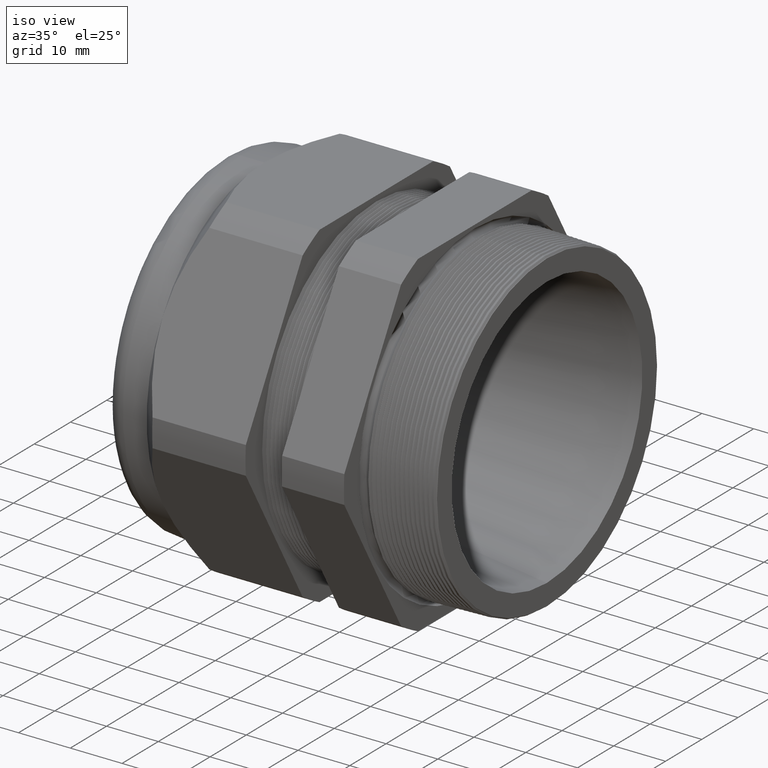
[diagram: clean part render]
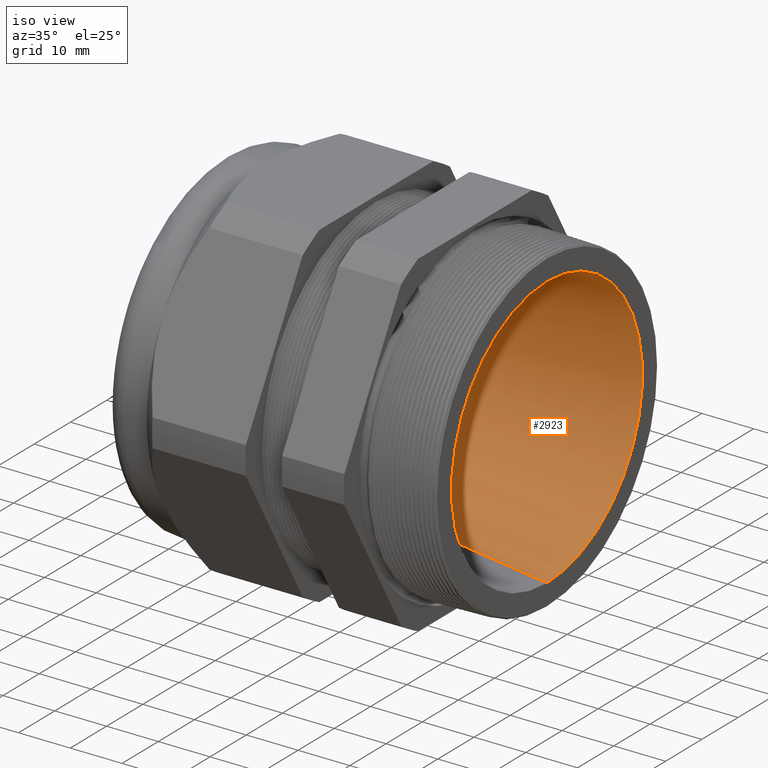
[diagram: same view with one face highlighted and labeled with its STEP entity id]
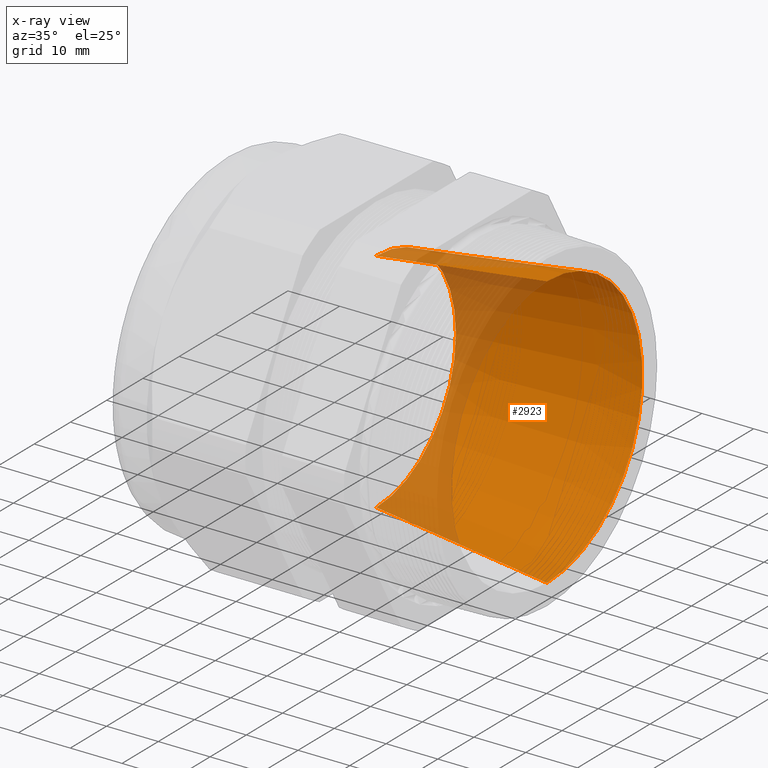
[diagram: x-ray of the same camera — body ghosted, the highlighted face saturated]
A machine part, iso view. The second image highlights one B-rep face of the part: STEP entity #2923.
The next image is the same camera in x-ray: the body ghosted, the highlighted face saturated — about 23% of this face is hidden behind the body in this view.
In plain terms, the highlighted conical surface has half-angle 7.5 deg.
Its self-contained STEP definition (entity closure, byte-faithful):
#206 = DIRECTION ( 'NONE',  ( 0.0000000000000000000, 0.0000000000000000000, -1.000000000000000000 ) ) ;
#207 = DIRECTION ( 'NONE',  ( 1.000000000000000000, 0.0000000000000000000, 0.0000000000000000000 ) ) ;
#208 = CARTESIAN_POINT ( 'NONE',  ( -1.058802799999999400, 0.0000000000000000000, 0.0000000000000000000 ) ) ;
#209 = AXIS2_PLACEMENT_3D ( 'NONE', #208, #207, #206 ) ;
#211 = CONICAL_SURFACE ( 'NONE', #209, 0.8649999999999998800, 0.1308989516474506300 ) ;
#212 = FACE_OUTER_BOUND ( 'NONE', #2924, .T. ) ;
#218 = DIRECTION ( 'NONE',  ( 0.0000000000000000000, 0.0000000000000000000, -1.000000000000000000 ) ) ;
#219 = DIRECTION ( 'NONE',  ( 1.000000000000000000, 0.0000000000000000000, 0.0000000000000000000 ) ) ;
#220 = CARTESIAN_POINT ( 'NONE',  ( 0.2400000000000001000, 0.0000000000000000000, 0.0000000000000000000 ) ) ;
#221 = AXIS2_PLACEMENT_3D ( 'NONE', #220, #219, #218 ) ;
#222 = CIRCLE ( 'NONE', #221, 1.035989651745368800 ) ;
#257 = DIRECTION ( 'NONE',  ( 0.0000000000000000000, 0.0000000000000000000, -1.000000000000000000 ) ) ;
#258 = DIRECTION ( 'NONE',  ( 1.000000000000000000, 0.0000000000000000000, 0.0000000000000000000 ) ) ;
#259 = CARTESIAN_POINT ( 'NONE',  ( -1.058802799999999400, 0.0000000000000000000, 0.0000000000000000000 ) ) ;
#260 = AXIS2_PLACEMENT_3D ( 'NONE', #259, #258, #257 ) ;
#261 = CIRCLE ( 'NONE', #260, 0.8649999999999998800 ) ;
#1637 = CARTESIAN_POINT ( 'NONE',  ( -1.058802799999999400, 0.0000000000000000000, -0.8649999999999998800 ) ) ;
#1638 = CARTESIAN_POINT ( 'NONE',  ( -1.058802799999999400, 1.164020446111103600E-016, 0.8649999999999998800 ) ) ;
#1646 = DIRECTION ( 'NONE',  ( 0.9914449582568808400, 1.598475822870390700E-017, 0.1305254563179613600 ) ) ;
#1647 = VECTOR ( 'NONE', #1646, 39.37007874015748100 ) ;
#1648 = CARTESIAN_POINT ( 'NONE',  ( -1.058802799999999400, 1.059319481262460500E-016, 0.8649999999999998800 ) ) ;
#1649 = LINE ( 'NONE', #1648, #1647 ) ;
#1655 = DIRECTION ( 'NONE',  ( 0.9914449582568808400, 0.0000000000000000000, -0.1305254563179613600 ) ) ;
#1656 = VECTOR ( 'NONE', #1655, 39.37007874015748100 ) ;
#1657 = CARTESIAN_POINT ( 'NONE',  ( -1.058802799999999400, 0.0000000000000000000, -0.8649999999999998800 ) ) ;
#1658 = LINE ( 'NONE', #1657, #1656 ) ;
#1659 = CARTESIAN_POINT ( 'NONE',  ( 0.2400000000000001000, 0.0000000000000000000, -1.035989651745368800 ) ) ;
#1666 = CARTESIAN_POINT ( 'NONE',  ( 0.2400000000000001000, 1.268721410959747200E-016, 1.035989651745368800 ) ) ;
#2918 = EDGE_CURVE ( 'NONE', #5907, #5903, #222, .T. ) ;
#2923 = ADVANCED_FACE ( 'NONE', ( #212 ), #211, .F. ) ;
#2924 = EDGE_LOOP ( 'NONE', ( #2927, #2929, #2961, #2964 ) ) ;
#2927 = ORIENTED_EDGE ( 'NONE', *, *, #5912, .F. ) ;
#2929 = ORIENTED_EDGE ( 'NONE', *, *, #2931, .F. ) ;
#2931 = EDGE_CURVE ( 'NONE', #5882, #5881, #261, .T. ) ;
#2961 = ORIENTED_EDGE ( 'NONE', *, *, #5908, .T. ) ;
#2964 = ORIENTED_EDGE ( 'NONE', *, *, #2918, .T. ) ;
#5881 = VERTEX_POINT ( 'NONE', #1638 ) ;
#5882 = VERTEX_POINT ( 'NONE', #1637 ) ;
#5903 = VERTEX_POINT ( 'NONE', #1666 ) ;
#5907 = VERTEX_POINT ( 'NONE', #1659 ) ;
#5908 = EDGE_CURVE ( 'NONE', #5882, #5907, #1658, .T. ) ;
#5912 = EDGE_CURVE ( 'NONE', #5881, #5903, #1649, .T. ) ;